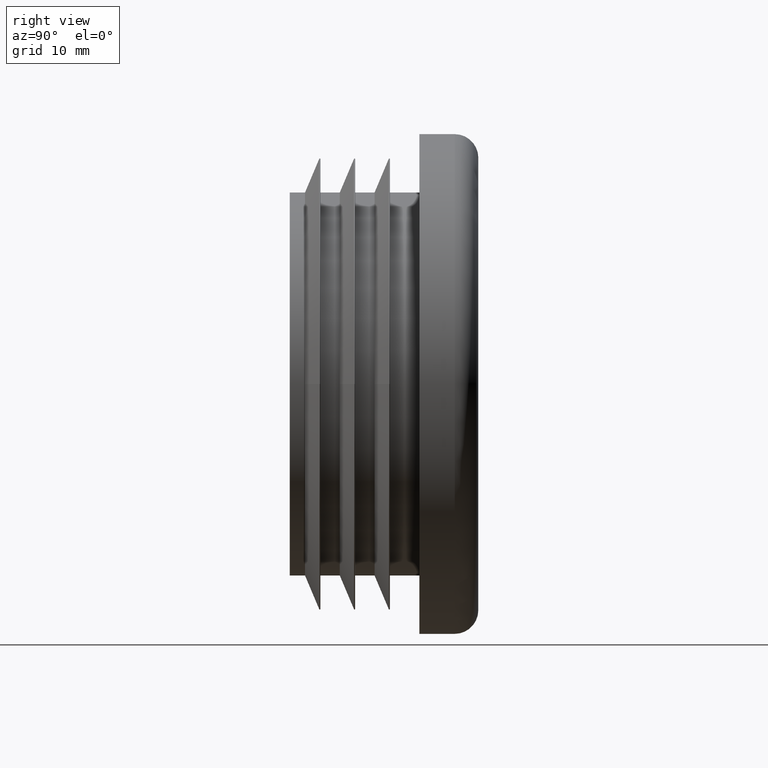
[diagram: clean part render]
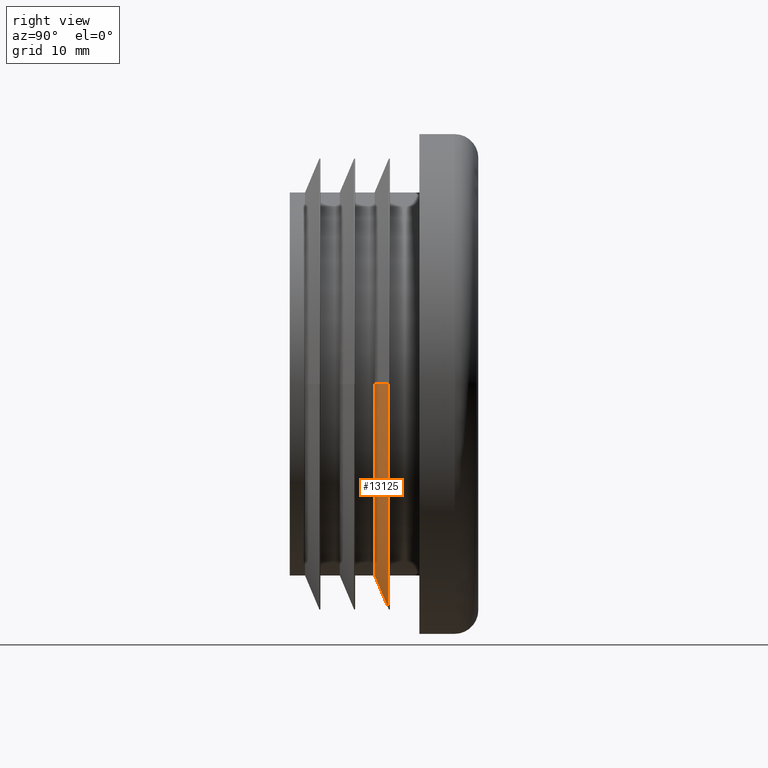
[diagram: same view with one face highlighted and labeled with its STEP entity id]
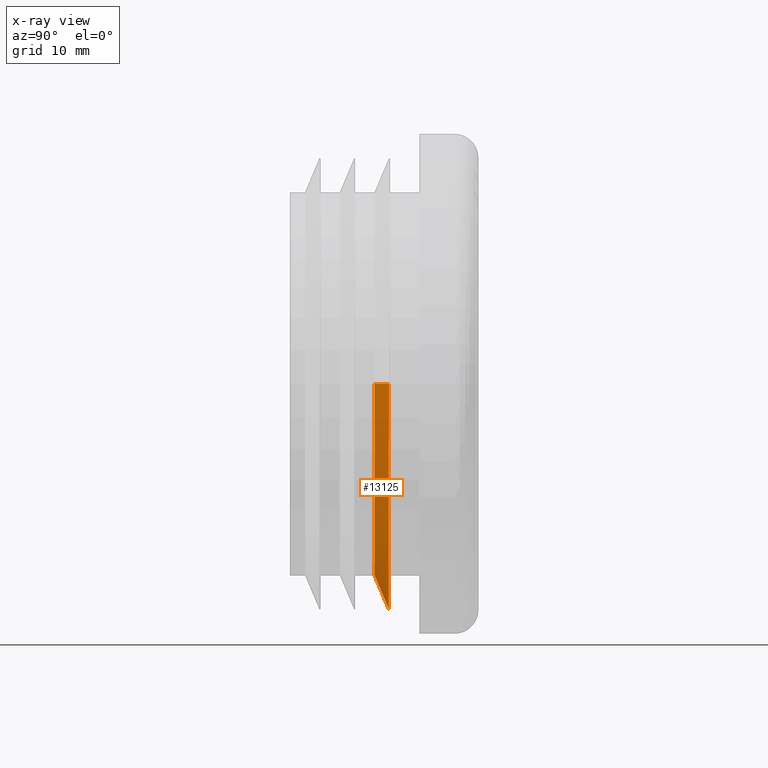
[diagram: x-ray of the same camera — body ghosted, the highlighted face saturated]
A machine part, right view. The second image highlights one B-rep face of the part: STEP entity #13125.
The next image is the same camera in x-ray: the body ghosted, the highlighted face saturated — about 0% of this face is hidden behind the body in this view.
In plain terms, the highlighted conical surface has half-angle 67.59 deg.
Its self-contained STEP definition (entity closure, byte-faithful):
#286 = VERTEX_POINT ( 'NONE', #6183 ) ;
#801 = CARTESIAN_POINT ( 'NONE',  ( -7.541599691901369996E-14, 7.200000000000192024, 0.000000000000000000 ) ) ;
#870 = VERTEX_POINT ( 'NONE', #2276 ) ;
#905 = DIRECTION ( 'NONE',  ( -1.047444401652940164E-14, 1.000000000000000000, 0.000000000000000000 ) ) ;
#1082 = CARTESIAN_POINT ( 'NONE',  ( -7.541599691901402812E-14, 7.200000000000223999, 0.000000000000000000 ) ) ;
#1222 = LINE ( 'NONE', #2408, #7381 ) ;
#1417 = CARTESIAN_POINT ( 'NONE',  ( 19.16906198721965282, 8.403776189650805861, 2.347533040530586219E-15 ) ) ;
#1897 = AXIS2_PLACEMENT_3D ( 'NONE', #10420, #10520, #11612 ) ;
#1903 = CARTESIAN_POINT ( 'NONE',  ( -19.16906198721983046, 8.403776189650402628, 0.000000000000000000 ) ) ;
#2133 = EDGE_CURVE ( 'NONE', #286, #2703, #2226, .T. ) ;
#2226 = LINE ( 'NONE', #7701, #5408 ) ;
#2276 = CARTESIAN_POINT ( 'NONE',  ( -16.25000000000007816, 7.200000000000022382, 0.000000000000000000 ) ) ;
#2408 = CARTESIAN_POINT ( 'NONE',  ( -16.25000000000015277, 7.200000000000053468, 0.000000000000000000 ) ) ;
#2703 = VERTEX_POINT ( 'NONE', #1417 ) ;
#2765 = EDGE_LOOP ( 'NONE', ( #6404, #3918, #3103, #7413, #7838 ) ) ;
#2829 = EDGE_CURVE ( 'NONE', #286, #6446, #6073, .T. ) ;
#2910 = VERTEX_POINT ( 'NONE', #1903 ) ;
#3103 = ORIENTED_EDGE ( 'NONE', *, *, #10172, .T. ) ;
#3637 = CARTESIAN_POINT ( 'NONE',  ( -1.774937036747276562E-27, 7.200000000000192024, -16.25000000000000000 ) ) ;
#3918 = ORIENTED_EDGE ( 'NONE', *, *, #2829, .T. ) ;
#4205 = DIRECTION ( 'NONE',  ( -1.000000000000000000, -1.046171696281392412E-14, 0.000000000000000000 ) ) ;
#4645 = DIRECTION ( 'NONE',  ( 0.9244762069923481151, 0.3812397443932636909, 1.132156827781070026E-16 ) ) ;
#4979 = CIRCLE ( 'NONE', #11084, 19.16906198721974519 ) ;
#4982 = DIRECTION ( 'NONE',  ( -1.047444401652940164E-14, 1.000000000000000000, 0.000000000000000000 ) ) ;
#5408 = VECTOR ( 'NONE', #4645, 1000.000000000000227 ) ;
#5841 = FACE_OUTER_BOUND ( 'NONE', #2765, .T. ) ;
#6073 = CIRCLE ( 'NONE', #6802, 16.25000000000000000 ) ;
#6183 = CARTESIAN_POINT ( 'NONE',  ( 16.24999999999992539, 7.200000000000362554, 2.168792044572518161E-15 ) ) ;
#6404 = ORIENTED_EDGE ( 'NONE', *, *, #2133, .F. ) ;
#6426 = EDGE_CURVE ( 'NONE', #2910, #2703, #4979, .T. ) ;
#6446 = VERTEX_POINT ( 'NONE', #3637 ) ;
#6557 = CIRCLE ( 'NONE', #1897, 16.25000000000000000 ) ;
#6784 = DIRECTION ( 'NONE',  ( 1.000000000000000000, 1.049753625646736379E-14, 0.000000000000000000 ) ) ;
#6802 = AXIS2_PLACEMENT_3D ( 'NONE', #801, #4982, #8180 ) ;
#7381 = VECTOR ( 'NONE', #10659, 999.9999999999998863 ) ;
#7413 = ORIENTED_EDGE ( 'NONE', *, *, #9909, .T. ) ;
#7701 = CARTESIAN_POINT ( 'NONE',  ( 16.25000000000000000, 7.200000000000393641, 1.990051048614458385E-15 ) ) ;
#7838 = ORIENTED_EDGE ( 'NONE', *, *, #6426, .T. ) ;
#8180 = DIRECTION ( 'NONE',  ( -1.000000000000000000, -1.046171696281397461E-14, 0.000000000000000000 ) ) ;
#9909 = EDGE_CURVE ( 'NONE', #870, #2910, #1222, .T. ) ;
#10027 = DIRECTION ( 'NONE',  ( 1.047444401652940164E-14, -1.000000000000000000, -0.000000000000000000 ) ) ;
#10172 = EDGE_CURVE ( 'NONE', #6446, #870, #6557, .T. ) ;
#10420 = CARTESIAN_POINT ( 'NONE',  ( -7.541599691901369996E-14, 7.200000000000192024, 0.000000000000000000 ) ) ;
#10520 = DIRECTION ( 'NONE',  ( -1.047444401652940164E-14, 1.000000000000000000, 0.000000000000000000 ) ) ;
#10659 = DIRECTION ( 'NONE',  ( -0.9244762069923562198, 0.3812397443932444285, 0.000000000000000000 ) ) ;
#10910 = CARTESIAN_POINT ( 'NONE',  ( -8.802488322593802865E-14, 8.403776189650603357, 0.000000000000000000 ) ) ;
#11084 = AXIS2_PLACEMENT_3D ( 'NONE', #10910, #10027, #6784 ) ;
#11612 = DIRECTION ( 'NONE',  ( -1.000000000000000000, -1.046171696281397461E-14, 0.000000000000000000 ) ) ;
#13061 = AXIS2_PLACEMENT_3D ( 'NONE', #1082, #905, #4205 ) ;
#13125 = ADVANCED_FACE ( 'NONE', ( #5841 ), #13625, .T. ) ;
#13625 = CONICAL_SURFACE ( 'NONE', #13061, 16.25000000000007816, 1.179659376938436477 ) ;